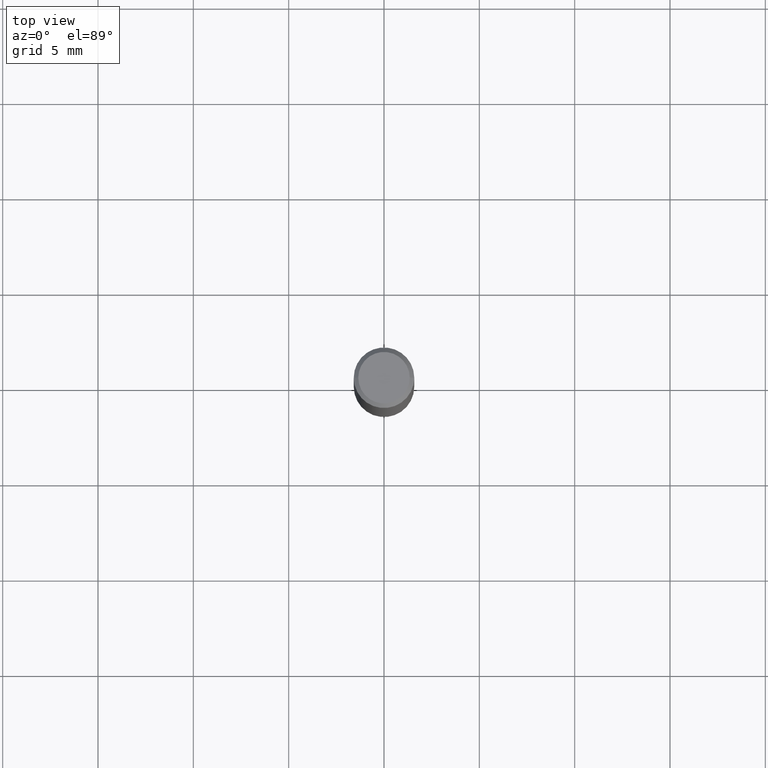
[diagram: clean part render]
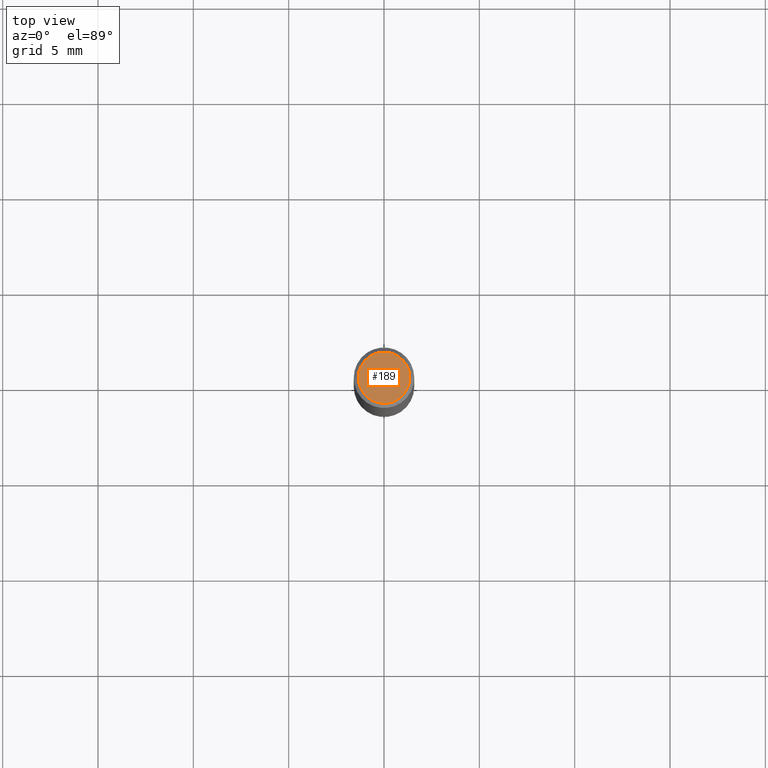
[diagram: same view with one face highlighted and labeled with its STEP entity id]
A machine part, top view. The second image highlights one B-rep face of the part: STEP entity #189.
In plain terms, the highlighted planar face has unit normal (0, -0, -1).
Its self-contained STEP definition (entity closure, byte-faithful):
#34 = AXIS2_PLACEMENT_3D ( 'NONE', #480, #66, #560 ) ;
#46 = EDGE_CURVE ( 'NONE', #228, #395, #358, .T. ) ;
#66 = DIRECTION ( 'NONE',  ( -2.445468806185136597E-29, 3.491481338843145583E-15, 1.000000000000000000 ) ) ;
#67 = DIRECTION ( 'NONE',  ( -2.445468806185136597E-29, 3.491481338843145583E-15, 1.000000000000000000 ) ) ;
#93 = EDGE_LOOP ( 'NONE', ( #580, #181 ) ) ;
#147 = AXIS2_PLACEMENT_3D ( 'NONE', #191, #542, #465 ) ;
#157 = CARTESIAN_POINT ( 'NONE',  ( 0.05312499999999999861, -4.129888592719939842E-16, -5.787680772767651417E-18 ) ) ;
#181 = ORIENTED_EDGE ( 'NONE', *, *, #511, .T. ) ;
#189 = ADVANCED_FACE ( 'NONE', ( #589 ), #321, .F. ) ;
#191 = CARTESIAN_POINT ( 'NONE',  ( 7.076796394983739835E-47, -1.010378970665454992E-32, -2.893840386385196200E-18 ) ) ;
#228 = VERTEX_POINT ( 'NONE', #235 ) ;
#235 = CARTESIAN_POINT ( 'NONE',  ( -0.05312499999999999861, 3.873362110279099094E-16, -5.787680772773044021E-18 ) ) ;
#282 = CIRCLE ( 'NONE', #573, 0.05312499999999999861 ) ;
#321 = PLANE ( 'NONE',  #147 ) ;
#347 = CARTESIAN_POINT ( 'NONE',  ( 1.415359278996747967E-46, -2.020757941330909984E-32, -5.787680772770392401E-18 ) ) ;
#358 = CIRCLE ( 'NONE', #34, 0.05312499999999999861 ) ;
#395 = VERTEX_POINT ( 'NONE', #157 ) ;
#426 = DIRECTION ( 'NONE',  ( 1.000000000000000000, -6.982962677686266711E-15, 4.875930095424100059E-29 ) ) ;
#465 = DIRECTION ( 'NONE',  ( -1.000000000000000000, 6.982962677686265922E-15, -4.876176775795935793E-29 ) ) ;
#480 = CARTESIAN_POINT ( 'NONE',  ( 1.415359278996747967E-46, -2.020757941330909984E-32, -5.787680772770392401E-18 ) ) ;
#511 = EDGE_CURVE ( 'NONE', #395, #228, #282, .T. ) ;
#542 = DIRECTION ( 'NONE',  ( 2.438088387897960049E-29, -3.491481338843145188E-15, -1.000000000000000000 ) ) ;
#560 = DIRECTION ( 'NONE',  ( 1.000000000000000000, -6.982962677686266711E-15, 4.875930095424100059E-29 ) ) ;
#573 = AXIS2_PLACEMENT_3D ( 'NONE', #347, #67, #426 ) ;
#580 = ORIENTED_EDGE ( 'NONE', *, *, #46, .T. ) ;
#589 = FACE_OUTER_BOUND ( 'NONE', #93, .T. ) ;